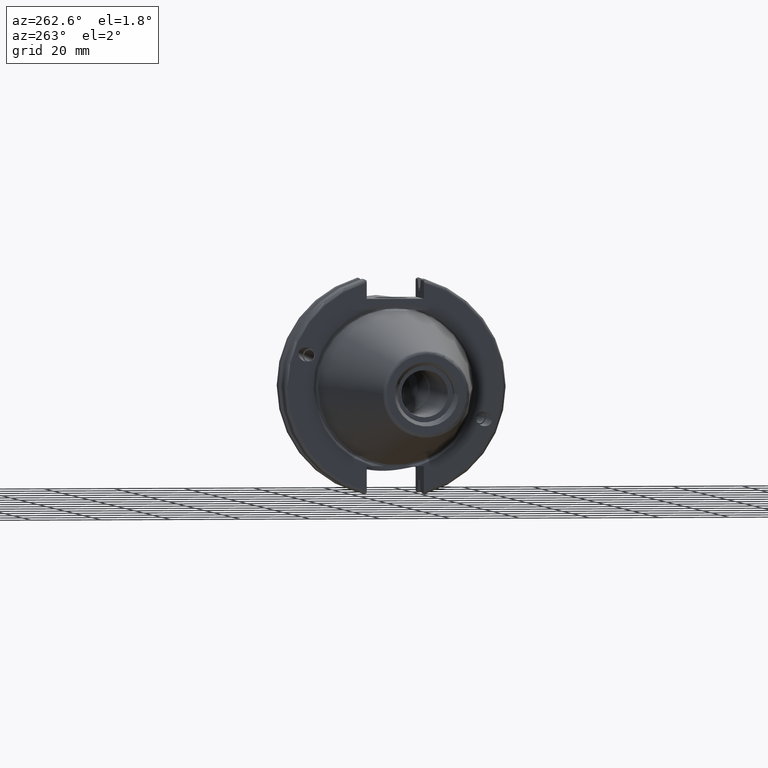
[diagram: clean part render]
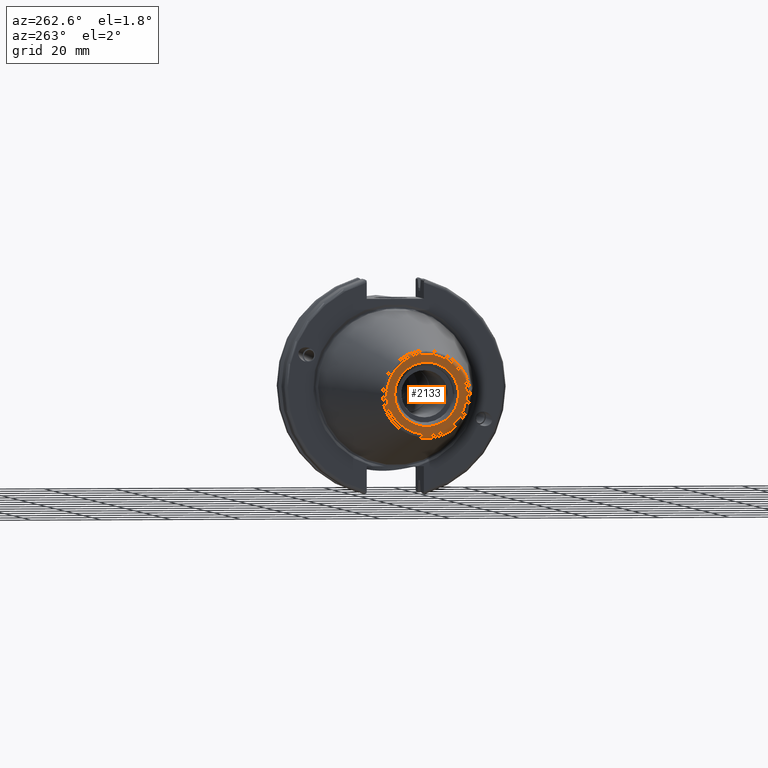
[diagram: same view with one face highlighted and labeled with its STEP entity id]
A machine part, auxiliary view. The second image highlights one B-rep face of the part: STEP entity #2133.
In plain terms, the highlighted planar face has unit normal (-1, 0, 0).
Its self-contained STEP definition (entity closure, byte-faithful):
#128=FACE_BOUND('',#570,.T.);
#153=PLANE('',#2423);
#452=FACE_OUTER_BOUND('',#569,.T.);
#569=EDGE_LOOP('',(#1876,#1877));
#570=EDGE_LOOP('',(#1878,#1879));
#746=CIRCLE('',#2420,11.4071305970304);
#747=CIRCLE('',#2421,11.4071305970304);
#749=CIRCLE('',#2424,9.15);
#750=CIRCLE('',#2425,9.15);
#992=VERTEX_POINT('',#4132);
#993=VERTEX_POINT('',#4134);
#994=VERTEX_POINT('',#4139);
#995=VERTEX_POINT('',#4140);
#1308=EDGE_CURVE('',#992,#993,#746,.T.);
#1309=EDGE_CURVE('',#993,#992,#747,.T.);
#1311=EDGE_CURVE('',#994,#995,#749,.T.);
#1312=EDGE_CURVE('',#995,#994,#750,.T.);
#1876=ORIENTED_EDGE('',*,*,#1309,.F.);
#1877=ORIENTED_EDGE('',*,*,#1308,.F.);
#1878=ORIENTED_EDGE('',*,*,#1311,.T.);
#1879=ORIENTED_EDGE('',*,*,#1312,.T.);
#2133=ADVANCED_FACE('',(#452,#128),#153,.T.);
#2420=AXIS2_PLACEMENT_3D('',#4135,#3037,#3038);
#2421=AXIS2_PLACEMENT_3D('',#4136,#3039,#3040);
#2423=AXIS2_PLACEMENT_3D('',#4138,#3043,#3044);
#2424=AXIS2_PLACEMENT_3D('',#4141,#3045,#3046);
#2425=AXIS2_PLACEMENT_3D('',#4142,#3047,#3048);
#3037=DIRECTION('center_axis',(1.,0.,0.));
#3038=DIRECTION('ref_axis',(0.,-1.,1.83697019872103E-16));
#3039=DIRECTION('center_axis',(1.,0.,0.));
#3040=DIRECTION('ref_axis',(0.,-1.,1.83697019872103E-16));
#3043=DIRECTION('center_axis',(-1.,0.,0.));
#3044=DIRECTION('ref_axis',(0.,0.,1.));
#3045=DIRECTION('center_axis',(1.,0.,0.));
#3046=DIRECTION('ref_axis',(0.,0.,-1.));
#3047=DIRECTION('center_axis',(1.,0.,0.));
#3048=DIRECTION('ref_axis',(0.,0.,-1.));
#4132=CARTESIAN_POINT('',(-68.25,-1.39697059731091E-15,11.4071305970304));
#4134=CARTESIAN_POINT('',(-68.25,11.4071305970304,-6.98485298655456E-16));
#4135=CARTESIAN_POINT('Origin',(-68.25,0.,0.));
#4136=CARTESIAN_POINT('Origin',(-68.25,0.,0.));
#4138=CARTESIAN_POINT('Origin',(-68.25,12.271875,0.));
#4139=CARTESIAN_POINT('',(-68.25,9.15,0.));
#4140=CARTESIAN_POINT('',(-68.25,-9.15,-1.12055182121983E-15));
#4141=CARTESIAN_POINT('Origin',(-68.25,0.,0.));
#4142=CARTESIAN_POINT('Origin',(-68.25,0.,0.));